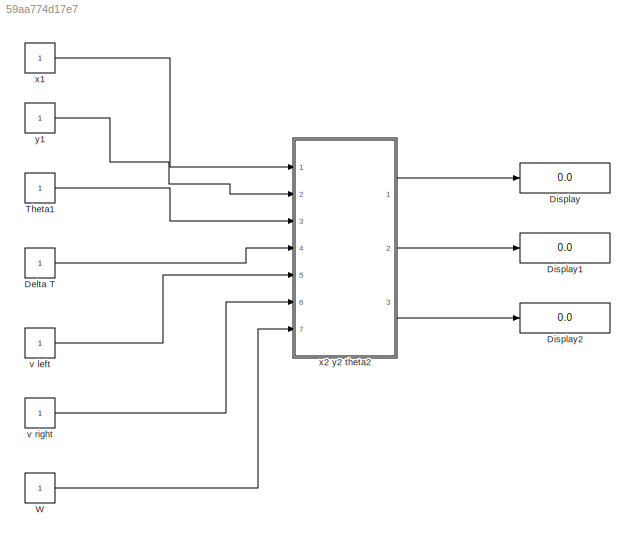
MODEL slx_59aa774d17e7
KIND model
BLOCK [Constant] Delta T
BLOCK [Display] Display
  Decimation = 1
  Ports = [1]
BLOCK [Display] Display1
  Decimation = 1
  Ports = [1]
BLOCK [Display] Display2
  Decimation = 1
  Ports = [1]
BLOCK [Constant] Theta1
BLOCK [Constant] W
BLOCK [Constant] v left
BLOCK [Constant] v right
BLOCK [Constant] x1
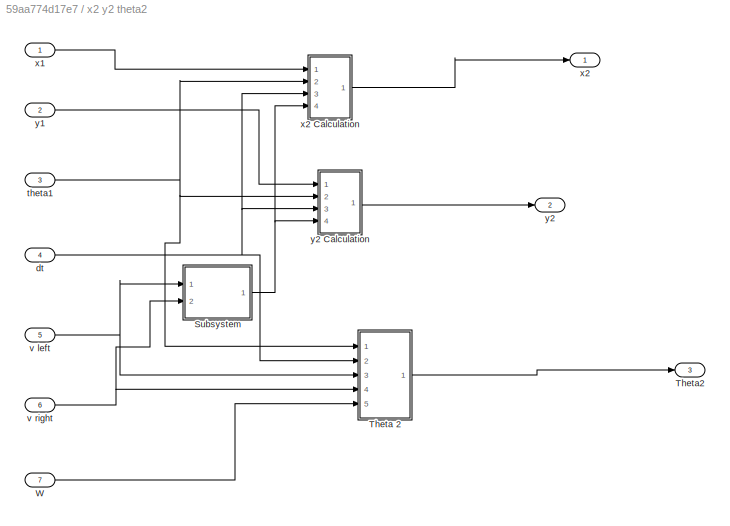
BLOCK [SubSystem] x2 y2 theta2
  FunctionWithSeparateData = off
  MaskHideContents = off
  MinAlgLoopOccurrences = off
  Opaque = off
  Ports = [7, 3]
  PropExecContextOutsideSubsystem = off
  RTWSystemCode = Auto
  RequestExecContextInheritance = off
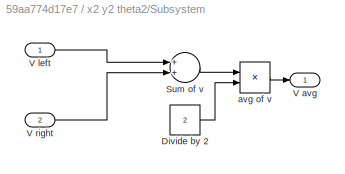
BLOCK [SubSystem] x2 y2 theta2/Subsystem
  FunctionWithSeparateData = off
  MaskHideContents = off
  MinAlgLoopOccurrences = off
  Opaque = off
  Ports = [2, 1]
  PropExecContextOutsideSubsystem = off
  RTWSystemCode = Auto
  RequestExecContextInheritance = off
BLOCK [Constant] x2 y2 theta2/Subsystem/Divide by 2
  Value = 2
BLOCK [Sum] x2 y2 theta2/Subsystem/Sum of v
  InputSameDT = off
  OutDataTypeStr = Inherit: Inherit via internal rule
  Ports = [2, 1]
  SaturateOnIntegerOverflow = off
BLOCK [Outport] x2 y2 theta2/Subsystem/V avg
  IconDisplay = Port number
BLOCK [Inport] x2 y2 theta2/Subsystem/V left
  IconDisplay = Port number
BLOCK [Inport] x2 y2 theta2/Subsystem/V right
  IconDisplay = Port number
  Port = 2
BLOCK [Product] x2 y2 theta2/Subsystem/avg of v
  InputSameDT = off
  Inputs = */
  OutDataTypeStr = Inherit: Inherit via internal rule
  Ports = [2, 1]
  RndMeth = Floor
  SaturateOnIntegerOverflow = off
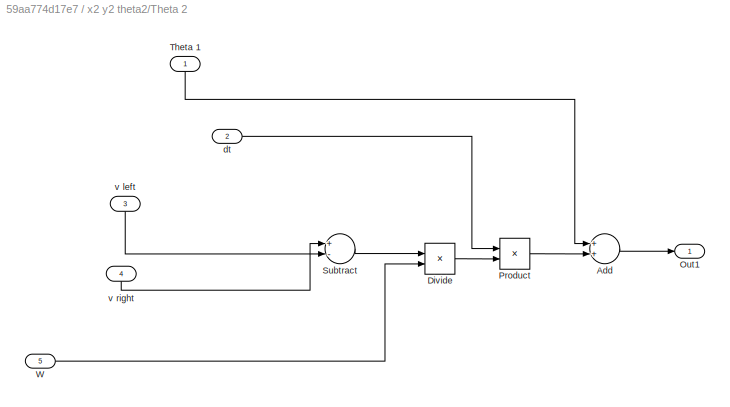
BLOCK [SubSystem] x2 y2 theta2/Theta 2 
  FunctionWithSeparateData = off
  MaskHideContents = off
  MinAlgLoopOccurrences = off
  Opaque = off
  Ports = [5, 1]
  PropExecContextOutsideSubsystem = off
  RTWSystemCode = Auto
  RequestExecContextInheritance = off
BLOCK [Sum] x2 y2 theta2/Theta 2 /Add
  InputSameDT = off
  OutDataTypeStr = Inherit: Inherit via internal rule
  Ports = [2, 1]
  SaturateOnIntegerOverflow = off
BLOCK [Product] x2 y2 theta2/Theta 2 /Divide
  InputSameDT = off
  Inputs = */
  OutDataTypeStr = Inherit: Inherit via internal rule
  Ports = [2, 1]
  RndMeth = Floor
  SaturateOnIntegerOverflow = off
BLOCK [Outport] x2 y2 theta2/Theta 2 /Out1
  IconDisplay = Port number
BLOCK [Product] x2 y2 theta2/Theta 2 /Product
  InputSameDT = off
  OutDataTypeStr = Inherit: Inherit via internal rule
  Ports = [2, 1]
  RndMeth = Floor
  SaturateOnIntegerOverflow = off
BLOCK [Sum] x2 y2 theta2/Theta 2 /Subtract
  InputSameDT = off
  Inputs = +-
  OutDataTypeStr = Inherit: Inherit via internal rule
  Ports = [2, 1]
  SaturateOnIntegerOverflow = off
BLOCK [Inport] x2 y2 theta2/Theta 2 /Theta 1
  IconDisplay = Port number
BLOCK [Inport] x2 y2 theta2/Theta 2 /W
  IconDisplay = Port number
  Port = 5
BLOCK [Inport] x2 y2 theta2/Theta 2 /dt
  IconDisplay = Port number
  Port = 2
BLOCK [Inport] x2 y2 theta2/Theta 2 /v left
  IconDisplay = Port number
  Port = 3
BLOCK [Inport] x2 y2 theta2/Theta 2 /v right
  IconDisplay = Port number
  Port = 4
BLOCK [Outport] x2 y2 theta2/Theta2
  IconDisplay = Port number
  Port = 3
BLOCK [Inport] x2 y2 theta2/W
  IconDisplay = Port number
  Port = 7
BLOCK [Inport] x2 y2 theta2/dt
  IconDisplay = Port number
  Port = 4
BLOCK [Inport] x2 y2 theta2/theta1
  IconDisplay = Port number
  Port = 3
BLOCK [Inport] x2 y2 theta2/v left
  IconDisplay = Port number
  Port = 5
BLOCK [Inport] x2 y2 theta2/v right
  IconDisplay = Port number
  Port = 6
BLOCK [Inport] x2 y2 theta2/x1
  IconDisplay = Port number
BLOCK [Outport] x2 y2 theta2/x2
  IconDisplay = Port number
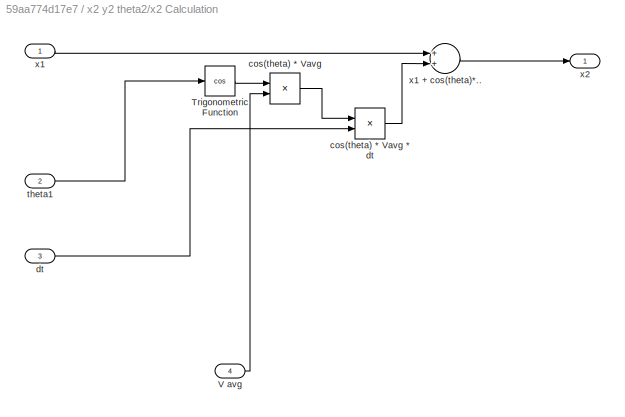
BLOCK [SubSystem] x2 y2 theta2/x2 Calculation
  FunctionWithSeparateData = off
  MaskHideContents = off
  MinAlgLoopOccurrences = off
  Opaque = off
  Ports = [4, 1]
  PropExecContextOutsideSubsystem = off
  RTWSystemCode = Auto
  RequestExecContextInheritance = off
BLOCK [Trigonometry] x2 y2 theta2/x2 Calculation/Trigonometric Function
  Operator = cos
  Ports = [1, 1]
BLOCK [Inport] x2 y2 theta2/x2 Calculation/V avg
  IconDisplay = Port number
  Port = 4
BLOCK [Product] x2 y2 theta2/x2 Calculation/cos(theta) * Vavg
  InputSameDT = off
  OutDataTypeStr = Inherit: Inherit via internal rule
  Ports = [2, 1]
  RndMeth = Floor
  SaturateOnIntegerOverflow = off
BLOCK [Product] x2 y2 theta2/x2 Calculation/cos(theta) * Vavg * dt
  InputSameDT = off
  OutDataTypeStr = Inherit: Inherit via internal rule
  Ports = [2, 1]
  RndMeth = Floor
  SaturateOnIntegerOverflow = off
BLOCK [Inport] x2 y2 theta2/x2 Calculation/dt
  IconDisplay = Port number
  Port = 3
BLOCK [Inport] x2 y2 theta2/x2 Calculation/theta1
  IconDisplay = Port number
  Port = 2
BLOCK [Inport] x2 y2 theta2/x2 Calculation/x1
  IconDisplay = Port number
BLOCK [Sum] x2 y2 theta2/x2 Calculation/x1 + cos(theta)*..
  InputSameDT = off
  OutDataTypeStr = Inherit: Inherit via internal rule
  Ports = [2, 1]
  SaturateOnIntegerOverflow = off
BLOCK [Outport] x2 y2 theta2/x2 Calculation/x2
  IconDisplay = Port number
BLOCK [Inport] x2 y2 theta2/y1
  IconDisplay = Port number
  Port = 2
BLOCK [Outport] x2 y2 theta2/y2
  IconDisplay = Port number
  Port = 2
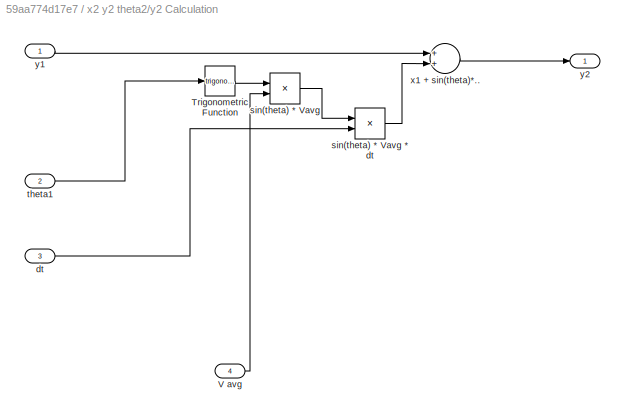
BLOCK [SubSystem] x2 y2 theta2/y2 Calculation
  FunctionWithSeparateData = off
  MaskHideContents = off
  MinAlgLoopOccurrences = off
  Opaque = off
  Ports = [4, 1]
  PropExecContextOutsideSubsystem = off
  RTWSystemCode = Auto
  RequestExecContextInheritance = off
BLOCK [Trigonometry] x2 y2 theta2/y2 Calculation/Trigonometric Function
  Ports = [1, 1]
BLOCK [Inport] x2 y2 theta2/y2 Calculation/V avg
  IconDisplay = Port number
  Port = 4
BLOCK [Inport] x2 y2 theta2/y2 Calculation/dt
  IconDisplay = Port number
  Port = 3
BLOCK [Product] x2 y2 theta2/y2 Calculation/sin(theta) * Vavg
  InputSameDT = off
  OutDataTypeStr = Inherit: Inherit via internal rule
  Ports = [2, 1]
  RndMeth = Floor
  SaturateOnIntegerOverflow = off
BLOCK [Product] x2 y2 theta2/y2 Calculation/sin(theta) * Vavg * dt
  InputSameDT = off
  OutDataTypeStr = Inherit: Inherit via internal rule
  Ports = [2, 1]
  RndMeth = Floor
  SaturateOnIntegerOverflow = off
BLOCK [Inport] x2 y2 theta2/y2 Calculation/theta1
  IconDisplay = Port number
  Port = 2
BLOCK [Sum] x2 y2 theta2/y2 Calculation/x1 + sin(theta)*..
  InputSameDT = off
  OutDataTypeStr = Inherit: Inherit via internal rule
  Ports = [2, 1]
  SaturateOnIntegerOverflow = off
BLOCK [Inport] x2 y2 theta2/y2 Calculation/y1
  IconDisplay = Port number
BLOCK [Outport] x2 y2 theta2/y2 Calculation/y2
  IconDisplay = Port number
BLOCK [Constant] y1
LINE Delta T:1 -> x2 y2 theta2:4
LINE Theta1:1 -> x2 y2 theta2:3
LINE W:1 -> x2 y2 theta2:7
LINE v left:1 -> x2 y2 theta2:5
LINE v right:1 -> x2 y2 theta2:6
LINE x1:1 -> x2 y2 theta2:1
LINE x2 y2 theta2/Subsystem/Divide by 2:1 -> x2 y2 theta2/Subsystem/avg of v:2
LINE x2 y2 theta2/Subsystem/Sum of v:1 -> x2 y2 theta2/Subsystem/avg of v:1
LINE x2 y2 theta2/Subsystem/V left:1 -> x2 y2 theta2/Subsystem/Sum of v:1
LINE x2 y2 theta2/Subsystem/V right:1 -> x2 y2 theta2/Subsystem/Sum of v:2
LINE x2 y2 theta2/Subsystem/avg of v:1 -> x2 y2 theta2/Subsystem/V avg:1
NET x2 y2 theta2/Subsystem:1 -> x2 y2 theta2/x2 Calculation:4, x2 y2 theta2/y2 Calculation:4
LINE x2 y2 theta2/Theta 2 /Add:1 -> x2 y2 theta2/Theta 2 /Out1:1
LINE x2 y2 theta2/Theta 2 /Divide:1 -> x2 y2 theta2/Theta 2 /Product:2
LINE x2 y2 theta2/Theta 2 /Product:1 -> x2 y2 theta2/Theta 2 /Add:2
LINE x2 y2 theta2/Theta 2 /Subtract:1 -> x2 y2 theta2/Theta 2 /Divide:1
LINE x2 y2 theta2/Theta 2 /Theta 1:1 -> x2 y2 theta2/Theta 2 /Add:1
LINE x2 y2 theta2/Theta 2 /W:1 -> x2 y2 theta2/Theta 2 /Divide:2
LINE x2 y2 theta2/Theta 2 /dt:1 -> x2 y2 theta2/Theta 2 /Product:1
LINE x2 y2 theta2/Theta 2 /v left:1 -> x2 y2 theta2/Theta 2 /Subtract:2
LINE x2 y2 theta2/Theta 2 /v right:1 -> x2 y2 theta2/Theta 2 /Subtract:1
LINE x2 y2 theta2/Theta 2 :1 -> x2 y2 theta2/Theta2:1
LINE x2 y2 theta2/W:1 -> x2 y2 theta2/Theta 2 :5
NET x2 y2 theta2/dt:1 -> x2 y2 theta2/Theta 2 :2, x2 y2 theta2/x2 Calculation:3, x2 y2 theta2/y2 Calculation:3
NET x2 y2 theta2/theta1:1 -> x2 y2 theta2/Theta 2 :1, x2 y2 theta2/x2 Calculation:2, x2 y2 theta2/y2 Calculation:2
NET x2 y2 theta2/v left:1 -> x2 y2 theta2/Subsystem:1, x2 y2 theta2/Theta 2 :3
NET x2 y2 theta2/v right:1 -> x2 y2 theta2/Subsystem:2, x2 y2 theta2/Theta 2 :4
LINE x2 y2 theta2/x1:1 -> x2 y2 theta2/x2 Calculation:1
LINE x2 y2 theta2/x2 Calculation/Trigonometric Function:1 -> x2 y2 theta2/x2 Calculation/cos(theta) * Vavg:1
LINE x2 y2 theta2/x2 Calculation/V avg:1 -> x2 y2 theta2/x2 Calculation/cos(theta) * Vavg:2
LINE x2 y2 theta2/x2 Calculation/cos(theta) * Vavg * dt:1 -> x2 y2 theta2/x2 Calculation/x1 + cos(theta)*..:2
LINE x2 y2 theta2/x2 Calculation/cos(theta) * Vavg:1 -> x2 y2 theta2/x2 Calculation/cos(theta) * Vavg * dt:1
LINE x2 y2 theta2/x2 Calculation/dt:1 -> x2 y2 theta2/x2 Calculation/cos(theta) * Vavg * dt:2
LINE x2 y2 theta2/x2 Calculation/theta1:1 -> x2 y2 theta2/x2 Calculation/Trigonometric Function:1
LINE x2 y2 theta2/x2 Calculation/x1 + cos(theta)*..:1 -> x2 y2 theta2/x2 Calculation/x2:1
LINE x2 y2 theta2/x2 Calculation/x1:1 -> x2 y2 theta2/x2 Calculation/x1 + cos(theta)*..:1
LINE x2 y2 theta2/x2 Calculation:1 -> x2 y2 theta2/x2:1
LINE x2 y2 theta2/y1:1 -> x2 y2 theta2/y2 Calculation:1
LINE x2 y2 theta2/y2 Calculation/Trigonometric Function:1 -> x2 y2 theta2/y2 Calculation/sin(theta) * Vavg:1
LINE x2 y2 theta2/y2 Calculation/V avg:1 -> x2 y2 theta2/y2 Calculation/sin(theta) * Vavg:2
LINE x2 y2 theta2/y2 Calculation/dt:1 -> x2 y2 theta2/y2 Calculation/sin(theta) * Vavg * dt:2
LINE x2 y2 theta2/y2 Calculation/sin(theta) * Vavg * dt:1 -> x2 y2 theta2/y2 Calculation/x1 + sin(theta)*..:2
LINE x2 y2 theta2/y2 Calculation/sin(theta) * Vavg:1 -> x2 y2 theta2/y2 Calculation/sin(theta) * Vavg * dt:1
LINE x2 y2 theta2/y2 Calculation/theta1:1 -> x2 y2 theta2/y2 Calculation/Trigonometric Function:1
LINE x2 y2 theta2/y2 Calculation/x1 + sin(theta)*..:1 -> x2 y2 theta2/y2 Calculation/y2:1
LINE x2 y2 theta2/y2 Calculation/y1:1 -> x2 y2 theta2/y2 Calculation/x1 + sin(theta)*..:1
LINE x2 y2 theta2/y2 Calculation:1 -> x2 y2 theta2/y2:1
LINE x2 y2 theta2:1 -> Display:1
LINE x2 y2 theta2:2 -> Display1:1
LINE x2 y2 theta2:3 -> Display2:1
LINE y1:1 -> x2 y2 theta2:2
note: NET lines group one-source signal fan-out (src -> all destinations, sorted); 1:1 wires keep LINE
